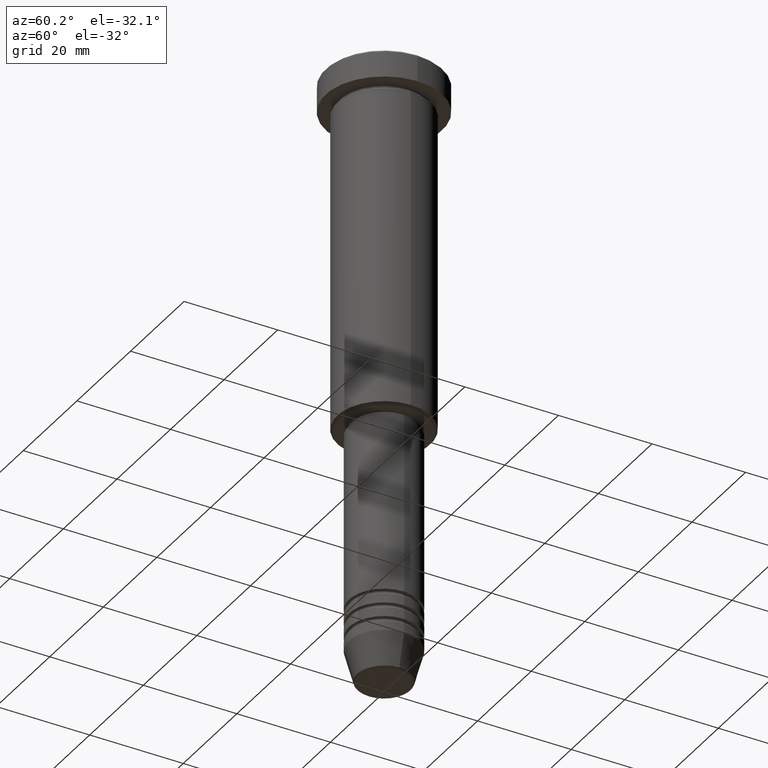
[diagram: clean part render]
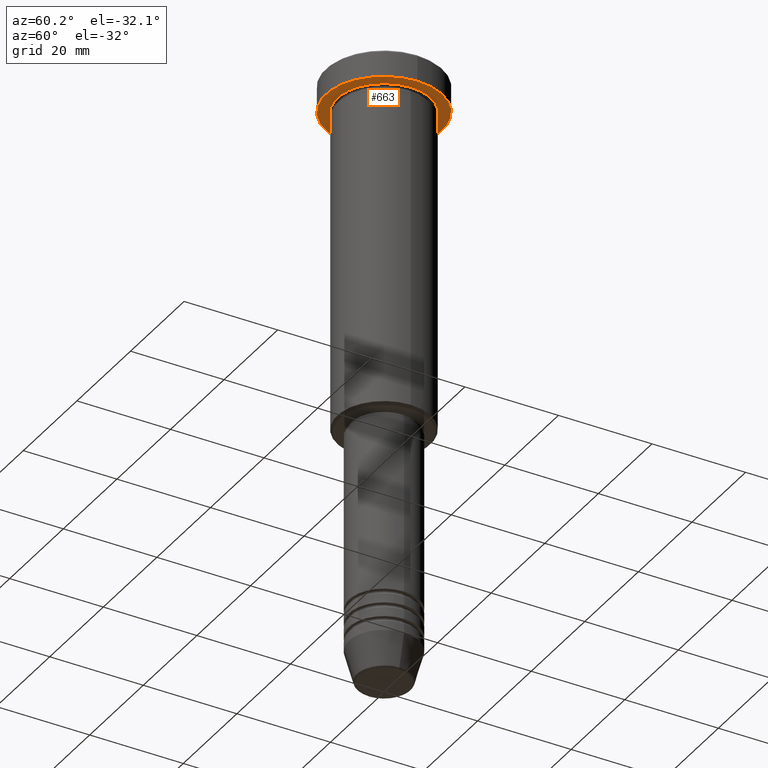
[diagram: same view with one face highlighted and labeled with its STEP entity id]
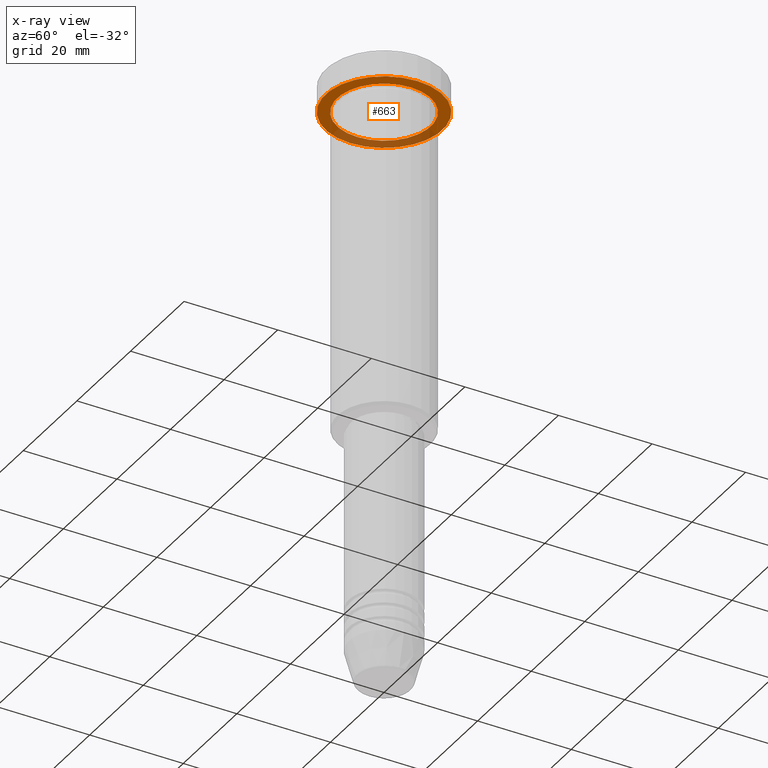
[diagram: x-ray of the same camera — body ghosted, the highlighted face saturated]
A machine part, auxiliary view. The second image highlights one B-rep face of the part: STEP entity #663.
The next image is the same camera in x-ray: the body ghosted, the highlighted face saturated — about 29% of this face is hidden behind the body in this view.
In plain terms, the highlighted planar face has unit normal (0, 0, -1).
Its self-contained STEP definition (entity closure, byte-faithful):
#17 = VERTEX_POINT ( 'NONE', #495 ) ;
#48 = CARTESIAN_POINT ( 'NONE',  ( -12.50000000000000000, 1.530808498934191521E-15, -5.999999999999996447 ) ) ;
#100 = DIRECTION ( 'NONE',  ( -1.000000000000000000, 0.000000000000000000, 0.000000000000000000 ) ) ;
#121 = EDGE_CURVE ( 'NONE', #933, #566, #836, .T. ) ;
#125 = FACE_BOUND ( 'NONE', #990, .T. ) ;
#168 = DIRECTION ( 'NONE',  ( -0.000000000000000000, -0.000000000000000000, 1.000000000000000000 ) ) ;
#175 = CARTESIAN_POINT ( 'NONE',  ( 0.000000000000000000, 0.000000000000000000, -5.999999999999996447 ) ) ;
#204 = CARTESIAN_POINT ( 'NONE',  ( 12.50000000000000000, 0.000000000000000000, -5.999999999999996447 ) ) ;
#252 = CARTESIAN_POINT ( 'NONE',  ( 0.000000000000000000, 0.000000000000000000, -5.999999999999996447 ) ) ;
#256 = EDGE_CURVE ( 'NONE', #506, #17, #818, .T. ) ;
#257 = DIRECTION ( 'NONE',  ( -0.000000000000000000, -0.000000000000000000, 1.000000000000000000 ) ) ;
#297 = ORIENTED_EDGE ( 'NONE', *, *, #121, .F. ) ;
#303 = EDGE_CURVE ( 'NONE', #566, #933, #1161, .T. ) ;
#313 = EDGE_CURVE ( 'NONE', #17, #506, #529, .T. ) ;
#326 = DIRECTION ( 'NONE',  ( -1.000000000000000000, 0.000000000000000000, -0.000000000000000000 ) ) ;
#404 = DIRECTION ( 'NONE',  ( 0.000000000000000000, 0.000000000000000000, -1.000000000000000000 ) ) ;
#408 = ORIENTED_EDGE ( 'NONE', *, *, #303, .F. ) ;
#412 = DIRECTION ( 'NONE',  ( -0.000000000000000000, -0.000000000000000000, 1.000000000000000000 ) ) ;
#437 = AXIS2_PLACEMENT_3D ( 'NONE', #175, #168, #910 ) ;
#469 = AXIS2_PLACEMENT_3D ( 'NONE', #869, #412, #597 ) ;
#495 = CARTESIAN_POINT ( 'NONE',  ( 10.00000000000000000, 1.224646799147353256E-15, -5.999999999999996447 ) ) ;
#496 = ORIENTED_EDGE ( 'NONE', *, *, #256, .T. ) ;
#506 = VERTEX_POINT ( 'NONE', #984 ) ;
#529 = CIRCLE ( 'NONE', #1063, 10.00000000000000000 ) ;
#542 = EDGE_LOOP ( 'NONE', ( #408, #297 ) ) ;
#566 = VERTEX_POINT ( 'NONE', #204 ) ;
#580 = ORIENTED_EDGE ( 'NONE', *, *, #313, .T. ) ;
#597 = DIRECTION ( 'NONE',  ( 1.000000000000000000, 0.000000000000000000, 0.000000000000000000 ) ) ;
#649 = DIRECTION ( 'NONE',  ( -0.000000000000000000, -0.000000000000000000, 1.000000000000000000 ) ) ;
#663 = ADVANCED_FACE ( 'NONE', ( #125, #1139 ), #781, .T. ) ;
#737 = CARTESIAN_POINT ( 'NONE',  ( 0.000000000000000000, 0.000000000000000000, -5.999999999999996447 ) ) ;
#781 = PLANE ( 'NONE',  #983 ) ;
#818 = CIRCLE ( 'NONE', #1106, 10.00000000000000000 ) ;
#836 = CIRCLE ( 'NONE', #469, 12.50000000000000000 ) ;
#869 = CARTESIAN_POINT ( 'NONE',  ( 0.000000000000000000, 0.000000000000000000, -5.999999999999996447 ) ) ;
#910 = DIRECTION ( 'NONE',  ( 1.000000000000000000, 0.000000000000000000, 0.000000000000000000 ) ) ;
#933 = VERTEX_POINT ( 'NONE', #48 ) ;
#951 = CARTESIAN_POINT ( 'NONE',  ( 0.000000000000000000, 12.50000000000000000, -5.999999999999996447 ) ) ;
#983 = AXIS2_PLACEMENT_3D ( 'NONE', #951, #404, #326 ) ;
#984 = CARTESIAN_POINT ( 'NONE',  ( -10.00000000000000000, 0.000000000000000000, -5.999999999999996447 ) ) ;
#986 = DIRECTION ( 'NONE',  ( -1.000000000000000000, 0.000000000000000000, 0.000000000000000000 ) ) ;
#990 = EDGE_LOOP ( 'NONE', ( #496, #580 ) ) ;
#1063 = AXIS2_PLACEMENT_3D ( 'NONE', #737, #649, #100 ) ;
#1106 = AXIS2_PLACEMENT_3D ( 'NONE', #252, #257, #986 ) ;
#1139 = FACE_OUTER_BOUND ( 'NONE', #542, .T. ) ;
#1161 = CIRCLE ( 'NONE', #437, 12.50000000000000000 ) ;